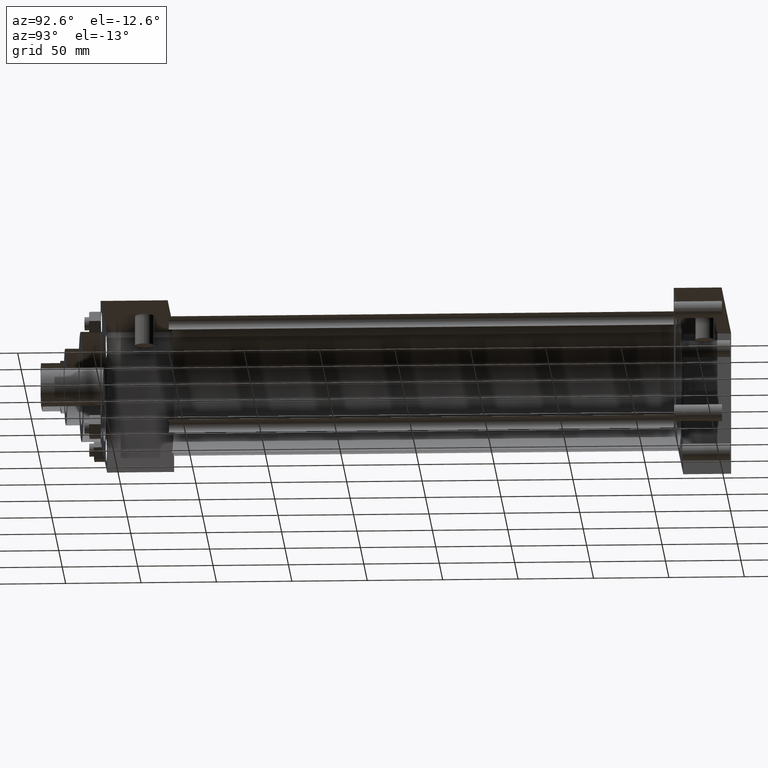
[diagram: clean part render]
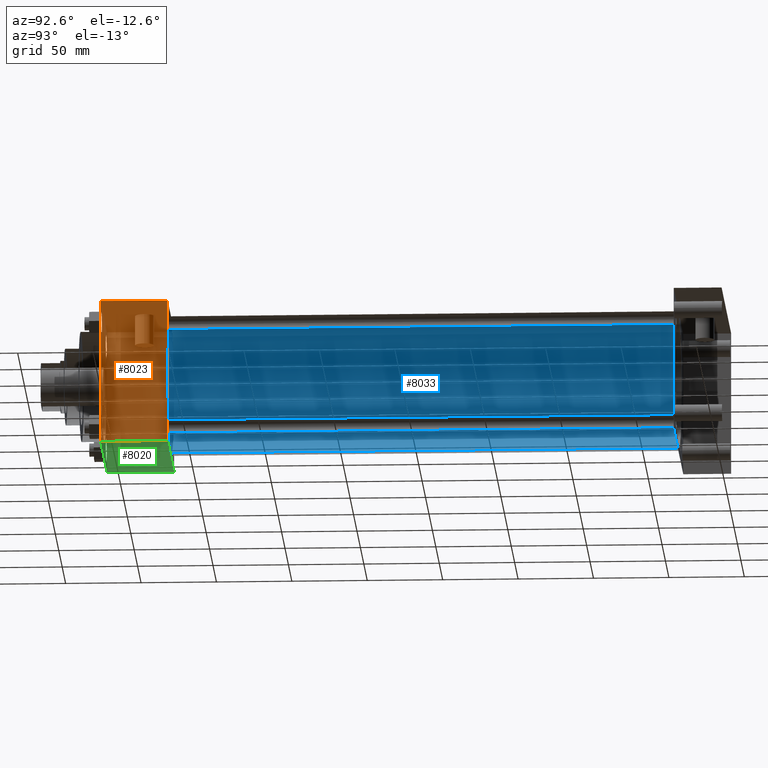
[diagram: same view with three faces highlighted in distinct colors, each labeled with its STEP entity id]
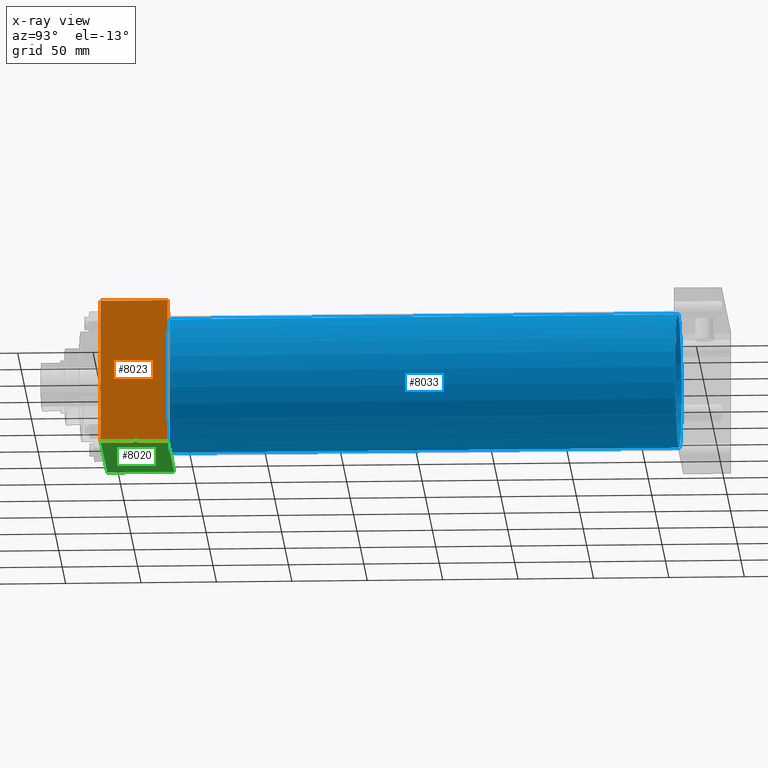
[diagram: x-ray of the same camera — body ghosted, the three highlighted faces saturated]
A machine part, auxiliary view with three faces highlighted in distinct colors.
The next image is the same camera in x-ray (body ghosted, the three faces saturated) — at least one of them is partly hidden behind the body in this view.
Their STEP definitions:

[orange] entity #8023 — the highlighted planar face has unit normal (1, 0, 0).
#521=VERTEX_POINT('',#523);
#523=CARTESIAN_POINT('',(4.762500000E+001,8.572500000E+001,-4.762500000E+001));
#536=VERTEX_POINT('',#537);
#537=CARTESIAN_POINT('',(4.762500000E+001,8.572500000E+001,4.762500000E+001));
#538=EDGE_CURVE('',#521,#536,#539,.T.);
#539=LINE('',#540,#541);
#540=CARTESIAN_POINT('',(4.762500000E+001,8.572500000E+001,-4.762500000E+001));
#541=VECTOR('',#542,1.0E+000);
#542=DIRECTION('',(0.0E+000,0.0E+000,1.0E+000));
#592=EDGE_CURVE('',#521,#597,#593,.T.);
#593=LINE('',#594,#595);
#594=CARTESIAN_POINT('',(4.762500000E+001,8.572500000E+001,-4.762500000E+001));
#595=VECTOR('',#596,1.0E+000);
#596=DIRECTION('',(0.0E+000,-1.0E+000,0.0E+000));
#597=VERTEX_POINT('',#598);
#598=CARTESIAN_POINT('',(4.762500000E+001,4.127500000E+001,-4.762500000E+001));
#645=VERTEX_POINT('',#646);
#646=CARTESIAN_POINT('',(4.762500000E+001,4.127500000E+001,4.762500000E+001));
#647=EDGE_CURVE('',#536,#645,#648,.T.);
#648=LINE('',#649,#650);
#649=CARTESIAN_POINT('',(4.762500000E+001,8.572500000E+001,4.762500000E+001));
#650=VECTOR('',#651,1.0E+000);
#651=DIRECTION('',(0.0E+000,-1.0E+000,0.0E+000));
#693=FACE_OUTER_BOUND('',#695,.T.);
#694=FACE_BOUND('',#696,.T.);
#695=EDGE_LOOP('',(#697,#698,#699,#700));
#696=EDGE_LOOP('',(#706));
#697=ORIENTED_EDGE('',*,*,#647,.T.);
#698=ORIENTED_EDGE('',*,*,#701,.F.);
#699=ORIENTED_EDGE('',*,*,#592,.F.);
#700=ORIENTED_EDGE('',*,*,#538,.T.);
#701=EDGE_CURVE('',#597,#645,#702,.T.);
#702=LINE('',#703,#704);
#703=CARTESIAN_POINT('',(4.762500000E+001,4.127500000E+001,-4.762500000E+001));
#704=VECTOR('',#705,1.0E+000);
#705=DIRECTION('',(0.0E+000,0.0E+000,1.0E+000));
#706=ORIENTED_EDGE('',*,*,#707,.T.);
#707=EDGE_CURVE('',#713,#713,#708,.T.);
#708=CIRCLE('',#709,2.778125000E+000);
#709=AXIS2_PLACEMENT_3D('',#710,#711,#712);
#710=CARTESIAN_POINT('',(4.762500000E+001,6.667500000E+001,0.000000000E+000));
#711=DIRECTION('',(-1.0E+000,0.0E+000,0.0E+000));
#712=DIRECTION('',(0.0E+000,1.0E+000,0.0E+000));
#713=VERTEX_POINT('',#714);
#714=CARTESIAN_POINT('',(4.762500000E+001,6.945312500E+001,0.000000000E+000));
#715=PLANE('',#716);
#716=AXIS2_PLACEMENT_3D('',#717,#718,#719);
#717=CARTESIAN_POINT('',(4.762500000E+001,8.572500000E+001,-4.762500000E+001));
#718=DIRECTION('',(1.0E+000,0.0E+000,0.0E+000));
#719=DIRECTION('',(0.0E+000,0.0E+000,-1.0E+000));
#8023=ADVANCED_FACE('',(#693,#694),#715,.T.);

[blue] entity #8033 — the highlighted cylindrical surface (bore or boss wall) has radius 44.45 mm, axis along (0, -1, 0).
#503=EDGE_CURVE('',#509,#509,#504,.T.);
#504=CIRCLE('',#505,4.445000000E+001);
#505=AXIS2_PLACEMENT_3D('',#506,#507,#508);
#506=CARTESIAN_POINT('',(0.000000000E+000,8.572500000E+001,0.000000000E+000));
#507=DIRECTION('',(0.0E+000,1.0E+000,0.0E+000));
#508=DIRECTION('',(1.0E+000,0.0E+000,0.0E+000));
#509=VERTEX_POINT('',#510);
#510=CARTESIAN_POINT('',(4.445000000E+001,8.572500000E+001,0.000000000E+000));
#2364=FACE_OUTER_BOUND('',#2366,.T.);
#2365=FACE_BOUND('',#2367,.T.);
#2366=EDGE_LOOP('',(#2368));
#2367=EDGE_LOOP('',(#2377));
#2368=ORIENTED_EDGE('',*,*,#2369,.F.);
#2369=EDGE_CURVE('',#2375,#2375,#2370,.T.);
#2370=CIRCLE('',#2371,4.445000000E+001);
#2371=AXIS2_PLACEMENT_3D('',#2372,#2373,#2374);
#2372=CARTESIAN_POINT('',(0.000000000E+000,4.222750000E+002,0.000000000E+000));
#2373=DIRECTION('',(0.0E+000,1.0E+000,0.0E+000));
#2374=DIRECTION('',(1.0E+000,0.0E+000,0.0E+000));
#2375=VERTEX_POINT('',#2376);
#2376=CARTESIAN_POINT('',(4.445000000E+001,4.222750000E+002,0.000000000E+000));
#2377=ORIENTED_EDGE('',*,*,#503,.T.);
#2378=CYLINDRICAL_SURFACE('',#2379,4.445000000E+001);
#2379=AXIS2_PLACEMENT_3D('',#2380,#2381,#2382);
#2380=CARTESIAN_POINT('',(0.000000000E+000,4.222750000E+002,0.000000000E+000));
#2381=DIRECTION('',(0.0E+000,-1.0E+000,0.0E+000));
#2382=DIRECTION('',(0.0E+000,0.0E+000,-1.0E+000));
#8033=ADVANCED_FACE('',(#2364,#2365),#2378,.T.);

[green] entity #8020 — the highlighted planar face has unit normal (0, 0, -1).
#515=EDGE_CURVE('',#520,#521,#516,.T.);
#516=LINE('',#517,#518);
#517=CARTESIAN_POINT('',(-4.762500000E+001,8.572500000E+001,-4.762500000E+001));
#518=VECTOR('',#519,1.0E+000);
#519=DIRECTION('',(1.0E+000,0.0E+000,0.0E+000));
#520=VERTEX_POINT('',#522);
#521=VERTEX_POINT('',#523);
#522=CARTESIAN_POINT('',(-4.762500000E+001,8.572500000E+001,-4.762500000E+001));
#523=CARTESIAN_POINT('',(4.762500000E+001,8.572500000E+001,-4.762500000E+001));
#584=FACE_OUTER_BOUND('',#586,.T.);
#585=FACE_BOUND('',#587,.T.);
#586=EDGE_LOOP('',(#588,#589,#590,#591));
#587=EDGE_LOOP('',(#611));
#588=ORIENTED_EDGE('',*,*,#592,.T.);
#589=ORIENTED_EDGE('',*,*,#599,.F.);
#590=ORIENTED_EDGE('',*,*,#606,.F.);
#591=ORIENTED_EDGE('',*,*,#515,.T.);
#592=EDGE_CURVE('',#521,#597,#593,.T.);
#593=LINE('',#594,#595);
#594=CARTESIAN_POINT('',(4.762500000E+001,8.572500000E+001,-4.762500000E+001));
#595=VECTOR('',#596,1.0E+000);
#596=DIRECTION('',(0.0E+000,-1.0E+000,0.0E+000));
#597=VERTEX_POINT('',#598);
#598=CARTESIAN_POINT('',(4.762500000E+001,4.127500000E+001,-4.762500000E+001));
#599=EDGE_CURVE('',#604,#597,#600,.T.);
#600=LINE('',#601,#602);
#601=CARTESIAN_POINT('',(-4.762500000E+001,4.127500000E+001,-4.762500000E+001));
#602=VECTOR('',#603,1.0E+000);
#603=DIRECTION('',(1.0E+000,0.0E+000,0.0E+000));
#604=VERTEX_POINT('',#605);
#605=CARTESIAN_POINT('',(-4.762500000E+001,4.127500000E+001,-4.762500000E+001));
#606=EDGE_CURVE('',#520,#604,#607,.T.);
#607=LINE('',#608,#609);
#608=CARTESIAN_POINT('',(-4.762500000E+001,8.572500000E+001,-4.762500000E+001));
#609=VECTOR('',#610,1.0E+000);
#610=DIRECTION('',(0.0E+000,-1.0E+000,0.0E+000));
#611=ORIENTED_EDGE('',*,*,#612,.T.);
#612=EDGE_CURVE('',#618,#618,#613,.T.);
#613=CIRCLE('',#614,2.778125000E+000);
#614=AXIS2_PLACEMENT_3D('',#615,#616,#617);
#615=CARTESIAN_POINT('',(0.000000000E+000,6.667500000E+001,-4.762500000E+001));
#616=DIRECTION('',(0.0E+000,0.0E+000,1.0E+000));
#617=DIRECTION('',(1.0E+000,0.0E+000,0.0E+000));
#618=VERTEX_POINT('',#619);
#619=CARTESIAN_POINT('',(2.778125000E+000,6.667500000E+001,-4.762500000E+001));
#620=PLANE('',#621);
#621=AXIS2_PLACEMENT_3D('',#622,#623,#624);
#622=CARTESIAN_POINT('',(-4.762500000E+001,8.572500000E+001,-4.762500000E+001));
#623=DIRECTION('',(0.0E+000,0.0E+000,-1.0E+000));
#624=DIRECTION('',(-1.0E+000,0.0E+000,0.0E+000));
#8020=ADVANCED_FACE('',(#584,#585),#620,.T.);